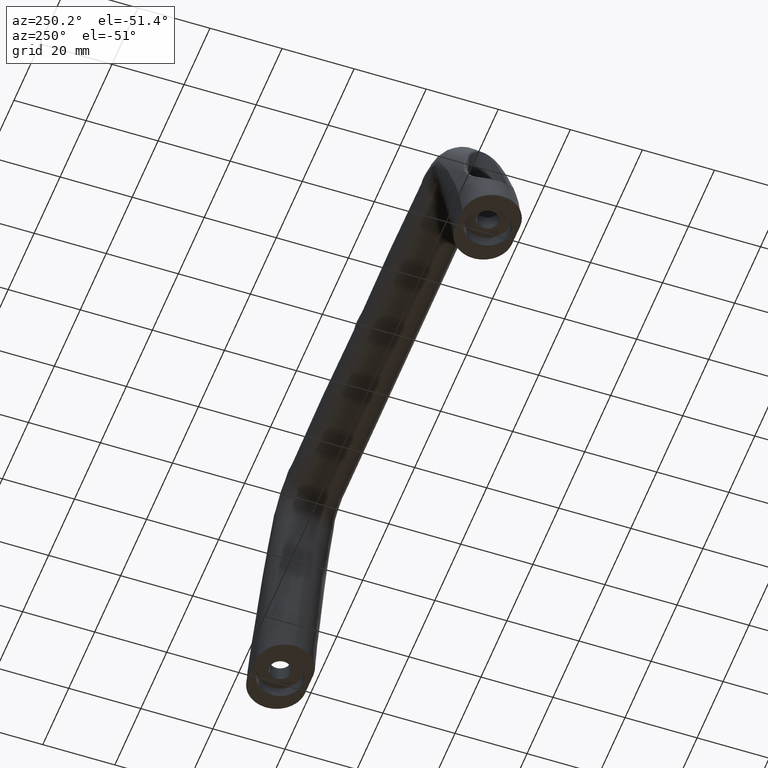
[diagram: clean part render]
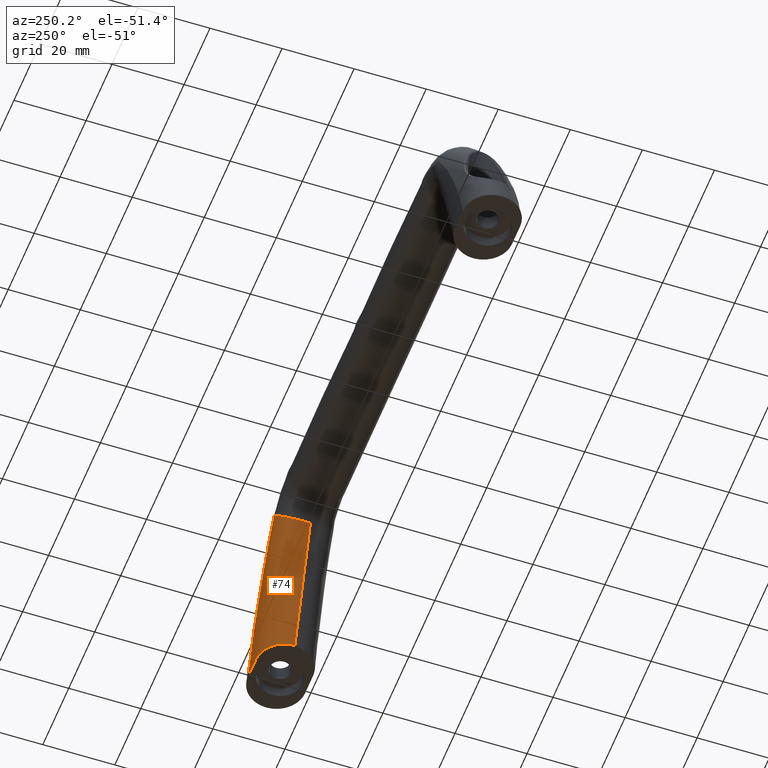
[diagram: same view with one face highlighted and labeled with its STEP entity id]
A machine part, auxiliary view. The second image highlights one B-rep face of the part: STEP entity #74.
In plain terms, the highlighted face is a freeform B-spline surface patch.
Its self-contained STEP definition (entity closure, byte-faithful):
#74=ADVANCED_FACE('',(#438),#437,.T.);
#437=( BOUNDED_SURFACE() B_SPLINE_SURFACE( 2,3,((#3720,#3721,#3722,#3723,#3724,#3725,#3726,#3727,#3728,#3729),(#3730,#3731,#3732,#3733,#3734,#3735,#3736,#3737,#3738,#3739),(#3740,#3741,#3742,#3743,#3744,#3745,#3746,#3747,#3748,#3749),(#3750,#3751,#3752,#3753,#3754,#3755,#3756,#3757,#3758,#3759),(#3760,#3761,#3762,#3763,#3764,#3765,#3766,#3767,#3768,#3769)), .UNSPECIFIED.,.F.,.F.,.F.) B_SPLINE_SURFACE_WITH_KNOTS((3,2,3),(4,2,2,2,4),(0.00000000000E+00,1.26555991594E+01,1.42983601190E+01),(-2.73114864058E-14,1.17126444058E+01,2.34252888115E+01,3.51379332173E+01,4.68505776231E+01), .UNSPECIFIED. ) GEOMETRIC_REPRESENTATION_ITEM() RATIONAL_B_SPLINE_SURFACE(((1.00000000000E+00,1.00000000000E+00,1.00000000000E+00,1.00000000000E+00,1.00000000000E+00,1.00000000000E+00,1.00000000000E+00,1.00000000000E+00,1.00000000000E+00,1.00000000000E+00),(7.07106781187E-01,7.07106781187E-01,7.07106781187E-01,7.07106781187E-01,7.07106781187E-01,7.07106781187E-01,7.07106781187E-01,7.07106781187E-01,7.07106781187E-01,7.07106781187E-01),(1.00000000000E+00,1.00000000000E+00,1.00000000000E+00,1.00000000000E+00,1.00000000000E+00,1.00000000000E+00,1.00000000000E+00,1.00000000000E+00,1.00000000000E+00,1.00000000000E+00),(9.86890175793E-01,9.86890175793E-01,9.87709539806E-01,9.90167631845E-01,9.91806359871E-01,9.95083815922E-01,9.96722543948E-01,9.99180635987E-01,1.00000000000E+00,1.00000000000E+00),(1.00000000000E+00,1.00000000000E+00,1.00000000000E+00,1.00000000000E+00,1.00000000000E+00,1.00000000000E+00,1.00000000000E+00,1.00000000000E+00,1.00000000000E+00,1.00000000000E+00))) REPRESENTATION_ITEM('') SURFACE() );
#438=FACE_OUTER_BOUND('',#3770,.T.);
#3720=CARTESIAN_POINT('',(-2.32899913541E+01,2.85000000150E+01,5.86999733827E+01));
#3721=CARTESIAN_POINT('',(-2.22824920745E+01,2.85000000150E+01,5.55999755995E+01));
#3722=CARTESIAN_POINT('',(-2.12749927950E+01,2.85000000150E+01,5.24999778164E+01));
#3723=CARTESIAN_POINT('',(-1.92599942359E+01,2.85000000150E+01,4.62999822501E+01));
#3724=CARTESIAN_POINT('',(-1.82524949564E+01,2.85000000150E+01,4.31999844670E+01));
#3725=CARTESIAN_POINT('',(-1.62374963974E+01,2.85000000150E+01,3.69999889007E+01));
#3726=CARTESIAN_POINT('',(-1.52299971179E+01,2.85000000150E+01,3.38999911175E+01));
#3727=CARTESIAN_POINT('',(-1.32149985590E+01,2.85000000150E+01,2.76999955512E+01));
#3728=CARTESIAN_POINT('',(-1.22074992795E+01,2.85000000150E+01,2.45999977681E+01));
#3729=CARTESIAN_POINT('',(-1.11999999999E+01,2.85000000150E+01,2.14999999850E+01));
#3730=CARTESIAN_POINT('',(-2.32899913541E+01,3.65566123028E+01,5.86999733827E+01));
#3731=CARTESIAN_POINT('',(-2.22824920745E+01,3.65566123028E+01,5.55999755995E+01));
#3732=CARTESIAN_POINT('',(-2.12749927950E+01,3.65499490349E+01,5.24999778164E+01));
#3733=CARTESIAN_POINT('',(-1.92599942359E+01,3.65299592309E+01,4.62999822501E+01));
#3734=CARTESIAN_POINT('',(-1.82524949564E+01,3.65166326949E+01,4.31999844670E+01));
#3735=CARTESIAN_POINT('',(-1.62374963974E+01,3.64899796229E+01,3.69999889007E+01));
#3736=CARTESIAN_POINT('',(-1.52299971179E+01,3.64766530870E+01,3.38999911175E+01));
#3737=CARTESIAN_POINT('',(-1.32149985590E+01,3.64566632830E+01,2.76999955512E+01));
#3738=CARTESIAN_POINT('',(-1.22074992795E+01,3.64500000150E+01,2.45999977681E+01));
#3739=CARTESIAN_POINT('',(-1.11999999999E+01,3.64500000150E+01,2.14999999850E+01));
#3740=CARTESIAN_POINT('',(-1.79222159583E+01,3.65566123028E+01,6.47079671291E+01));
#3741=CARTESIAN_POINT('',(-1.59331625505E+01,3.65566123028E+01,6.13731842310E+01));
#3742=CARTESIAN_POINT('',(-1.41736074125E+01,3.65499490349E+01,5.78350418513E+01));
#3743=CARTESIAN_POINT('',(-1.11860106982E+01,3.65299592309E+01,5.05921628121E+01));
#3744=CARTESIAN_POINT('',(-9.95441560421E+00,3.65166326949E+01,4.68920730364E+01));
#3745=CARTESIAN_POINT('',(-7.83648116805E+00,3.64899796229E+01,3.95254143793E+01));
#3746=CARTESIAN_POINT('',(-6.94259666984E+00,3.64766530870E+01,3.58623401949E+01));
#3747=CARTESIAN_POINT('',(-5.17132487878E+00,3.64566632830E+01,2.86357902746E+01));
#3748=CARTESIAN_POINT('',(-4.28695479229E+00,3.64500000150E+01,2.50725591624E+01));
#3749=CARTESIAN_POINT('',(-3.24999999993E+00,3.64500000150E+01,2.14999999850E+01));
#3750=CARTESIAN_POINT('',(-1.73701210390E+01,3.65566123028E+01,6.53259107982E+01));
#3751=CARTESIAN_POINT('',(-1.52825497598E+01,3.65566123028E+01,6.19673061865E+01));
#3752=CARTESIAN_POINT('',(-1.33740284117E+01,3.65498661212E+01,5.84603993675E+01));
#3753=CARTESIAN_POINT('',(-9.95292660388E+00,3.65296945658E+01,5.12700237748E+01));
#3754=CARTESIAN_POINT('',(-8.44038581323E+00,3.65163024101E+01,4.75945984716E+01));
#3755=CARTESIAN_POINT('',(-5.72755414775E+00,3.64896504260E+01,4.01877819169E+01));
#3756=CARTESIAN_POINT('',(-4.52273047366E+00,3.64763901624E+01,3.64580292106E+01));
#3757=CARTESIAN_POINT('',(-2.27152182565E+00,3.64565813212E+01,2.89959656932E+01));
#3758=CARTESIAN_POINT('',(-1.21980777474E+00,3.64500000150E+01,2.52579581122E+01));
#3759=CARTESIAN_POINT('',(-1.72289738416E-01,3.64500000150E+01,2.14999999850E+01));
#3760=CARTESIAN_POINT('',(-1.68467878146E+01,3.62926413948E+01,6.59116623447E+01));
#3761=CARTESIAN_POINT('',(-1.46654925782E+01,3.62926413948E+01,6.25298085047E+01));
#3762=CARTESIAN_POINT('',(-1.26047943234E+01,3.63024763086E+01,5.90509917418E+01));
#3763=CARTESIAN_POINT('',(-8.74389165421E+00,3.63319810499E+01,5.19238773608E+01));
#3764=CARTESIAN_POINT('',(-6.94358544698E+00,3.63516508774E+01,4.82751480269E+01));
#3765=CARTESIAN_POINT('',(-3.62443640942E+00,3.63909905324E+01,4.08347918637E+01));
#3766=CARTESIAN_POINT('',(-2.10559984680E+00,3.64106603600E+01,3.70428377879E+01));
#3767=CARTESIAN_POINT('',(6.30410565549E-01,3.64401651012E+01,2.93466784223E+01));
#3768=CARTESIAN_POINT('',(1.84748475563E+00,3.64500000150E+01,2.54425119447E+01));
#3769=CARTESIAN_POINT('',(2.90542052310E+00,3.64500000150E+01,2.14999999850E+01));
#3770=EDGE_LOOP('',(#4235,#4236,#4237,#4238,#4239));
#4235=ORIENTED_EDGE('',*,*,#4406,.F.);
#4236=ORIENTED_EDGE('',*,*,#4405,.T.);
#4237=ORIENTED_EDGE('',*,*,#4390,.F.);
#4238=ORIENTED_EDGE('',*,*,#4396,.F.);
#4239=ORIENTED_EDGE('',*,*,#4401,.F.);
#4390=EDGE_CURVE('',#4923,#4924,#4925,.T.);
#4396=EDGE_CURVE('',#4957,#4923,#4964,.T.);
#4401=EDGE_CURVE('',#4989,#4957,#4996,.T.);
#4405=EDGE_CURVE('',#4451,#4924,#5021,.T.);
#4406=EDGE_CURVE('',#4451,#4989,#5027,.T.);
#4451=VERTEX_POINT('',#5272);
#4923=VERTEX_POINT('',#6342);
#4924=VERTEX_POINT('',#6343);
#4925=LINE('',#6344,#6345);
#4957=VERTEX_POINT('',#6397);
#4964=CIRCLE('',#6420,8.05661228784E+00);
#4989=VERTEX_POINT('',#6455);
#4996=CIRCLE('',#6468,5.06705175328E+00);
#5021=(BOUNDED_CURVE() B_SPLINE_CURVE(3,(#6524,#6525,#6526,#6527,#6528,#6529,#6530,#6531,#6532,#6533,#6534,#6535,#6536,#6537,#6538,#6539,#6540,#6541,#6542,#6543,#6544,#6545,#6546,#6547,#6548,#6549,#6550,#6551,#6552,#6553,#6554,#6555,#6556,#6557),.UNSPECIFIED.,.F.,.F.) B_SPLINE_CURVE_WITH_KNOTS((4,1,2,2,2,2,2,2,2,2,2,2,2,2,2,1,2,4),(-1.86531113827E+01,-1.39898335370E+01,-1.28240140756E+01,-1.22411043449E+01,-1.16581946142E+01,-1.04923751528E+01,-9.90946542204E+00,-9.32655569133E+00,-8.16073622988E+00,-6.99491676854E+00,-5.82909730710E+00,-4.66327784566E+00,-2.33163892278E+00,-1.16581946144E+00,-5.82909730720E-01,-2.91454865309E-01,-1.45727432705E-01,0.00000000000E+00),.UNSPECIFIED.) CURVE() GEOMETRIC_REPRESENTATION_ITEM() RATIONAL_B_SPLINE_CURVE((1.00000000000E+00,1.00000000000E+00,1.00000000000E+00,1.00000000000E+00,1.00000000000E+00,1.00000000000E+00,1.00000000000E+00,1.00000000000E+00,1.00000000000E+00,1.00000000000E+00,1.00000000000E+00,1.00000000000E+00,1.00000000000E+00,1.00000000000E+00,1.00000000000E+00,1.00000000000E+00,1.00000000000E+00,1.00000000000E+00,1.00000000000E+00,1.00000000000E+00,1.00000000000E+00,1.00000000000E+00,1.00000000000E+00,1.00000000000E+00,1.00000000000E+00,1.00000000000E+00,1.00000000000E+00,1.00000000000E+00,1.00000000000E+00,1.00000000000E+00,1.00000000000E+00,1.00000000000E+00,1.00000000000E+00,1.00000000000E+00)) REPRESENTATION_ITEM('') );
#5027=(BOUNDED_CURVE() B_SPLINE_CURVE(3,(#6558,#6559,#6560,#6561,#6562,#6563,#6564,#6565,#6566,#6567,#6568,#6569,#6570),.UNSPECIFIED.,.F.,.F.) B_SPLINE_CURVE_WITH_KNOTS((4,3,3,3,4),(0.00000000000E+00,1.20482180650E+01,2.42907375283E+01,3.64859717455E+01,4.86065040064E+01),.UNSPECIFIED.) CURVE() GEOMETRIC_REPRESENTATION_ITEM() RATIONAL_B_SPLINE_CURVE((1.00000000000E+00,1.00000000000E+00,1.00000000000E+00,1.00000000000E+00,1.00000000000E+00,1.00000000000E+00,1.00000000000E+00,1.00000000000E+00,1.00000000000E+00,1.00000000000E+00,1.00000000000E+00,1.00000000000E+00,1.00000000000E+00)) REPRESENTATION_ITEM('') );
#5272=CARTESIAN_POINT('',(2.85160230910E+00,3.64499915980E+01,2.17000175471E+01));
#6342=CARTESIAN_POINT('',(-2.32899913541E+01,2.85000000150E+01,5.86999733827E+01));
#6343=CARTESIAN_POINT('',(-1.12449094052E+01,2.85000000150E+01,2.16381827705E+01));
#6344=CARTESIAN_POINT('',(-2.32899913541E+01,2.85000000150E+01,5.86999733827E+01));
#6345=VECTOR('',#6346,3.89699925909E+01);
#6346=DIRECTION('',(3.09086072336E-01,0.00000000000E+00,-9.51034068731E-01));
#6397=CARTESIAN_POINT('',(-1.79222159583E+01,3.65566123028E+01,6.47079671291E+01));
#6417=CARTESIAN_POINT('',(-1.79222159584E+01,2.85000000150E+01,6.47079671292E+01));
#6418=DIRECTION('',(-7.45722089115E-01,1.39614191261E-11,6.66257131899E-01));
#6419=DIRECTION('',(-1.04090656708E-11,-1.00000000000E+00,9.30443912956E-12));
#6420=AXIS2_PLACEMENT_3D('',#6417,#6418,#6419);
#6455=CARTESIAN_POINT('',(-1.68467878146E+01,3.62926413948E+01,6.59116623447E+01));
#6465=CARTESIAN_POINT('',(-1.79222159585E+01,3.14895605496E+01,6.47079671293E+01));
#6466=DIRECTION('',(-7.45722089115E-01,5.28452281934E-11,6.66257131899E-01));
#6467=DIRECTION('',(-2.12239423677E-01,-9.47904438152E-01,-2.37553369096E-01));
#6468=AXIS2_PLACEMENT_3D('',#6465,#6466,#6467);
#6524=CARTESIAN_POINT('',(2.85160230910E+00,3.64499915980E+01,2.17000175471E+01));
#6525=CARTESIAN_POINT('',(1.31562645853E+00,3.64499982111E+01,2.17000042587E+01));
#6526=CARTESIAN_POINT('',(-6.04343639118E-01,3.64500044331E+01,2.16999917199E+01));
#6527=CARTESIAN_POINT('',(-2.52431340435E+00,3.64500065454E+01,2.16999873630E+01));
#6528=CARTESIAN_POINT('',(-3.10030433578E+00,3.64500068956E+01,2.16999866201E+01));
#6529=CARTESIAN_POINT('',(-3.29237989954E+00,3.64523136552E+01,2.17001028520E+01));
#6530=CARTESIAN_POINT('',(-3.67607854688E+00,3.64437779165E+01,2.16973010127E+01));
#6531=CARTESIAN_POINT('',(-3.86769159724E+00,3.64325560407E+01,2.16958908764E+01));
#6532=CARTESIAN_POINT('',(-4.44181803695E+00,3.63779137299E+01,2.16916350262E+01));
#6533=CARTESIAN_POINT('',(-4.82362302458E+00,3.63136434678E+01,2.16887637709E+01));
#6534=CARTESIAN_POINT('',(-5.39482438522E+00,3.61729088404E+01,2.16844164499E+01));
#6535=CARTESIAN_POINT('',(-5.58498029330E+00,3.61184727707E+01,2.16829604689E+01));
#6536=CARTESIAN_POINT('',(-5.95718437955E+00,3.59968030230E+01,2.16800958551E+01));
#6537=CARTESIAN_POINT('',(-6.14020721780E+00,3.59293543828E+01,2.16786798333E+01));
#6538=CARTESIAN_POINT('',(-6.68020779759E+00,3.57075315461E+01,2.16744838295E+01));
#6539=CARTESIAN_POINT('',(-7.02816611906E+00,3.55337846377E+01,2.16717556587E+01));
#6540=CARTESIAN_POINT('',(-7.69971281840E+00,3.51339465318E+01,2.16664607295E+01));
#6541=CARTESIAN_POINT('',(-8.02463979214E+00,3.49062210805E+01,2.16638831935E+01));
#6542=CARTESIAN_POINT('',(-8.62899967290E+00,3.44121380199E+01,2.16590745938E+01));
#6543=CARTESIAN_POINT('',(-8.91109535140E+00,3.41445312625E+01,2.16568226083E+01));
#6544=CARTESIAN_POINT('',(-9.43540967948E+00,3.35684856720E+01,2.16526329298E+01));
#6545=CARTESIAN_POINT('',(-9.67931861709E+00,3.32573774706E+01,2.16506816608E+01));
#6546=CARTESIAN_POINT('',(-1.03342876315E+01,3.22801255714E+01,2.16454435664E+01));
#6547=CARTESIAN_POINT('',(-1.06683083700E+01,3.15777870831E+01,2.16427758750E+01));
#6548=CARTESIAN_POINT('',(-1.10133146370E+01,3.04469897256E+01,2.16400257575E+01));
#6549=CARTESIAN_POINT('',(-1.11002771773E+01,3.00609860546E+01,2.16393334828E+01));
#6550=CARTESIAN_POINT('',(-1.11869025050E+01,2.94793314105E+01,2.16386441524E+01));
#6551=CARTESIAN_POINT('',(-1.12085931495E+01,2.92846222909E+01,2.16384716147E+01));
#6552=CARTESIAN_POINT('',(-1.12303456201E+01,2.89913214740E+01,2.16382985988E+01));
#6553=CARTESIAN_POINT('',(-1.12385232327E+01,2.88443614658E+01,2.16382335615E+01));
#6554=CARTESIAN_POINT('',(-1.12426264374E+01,2.86969340209E+01,2.16382009286E+01));
#6555=CARTESIAN_POINT('',(-1.12444517543E+01,2.85985446403E+01,2.16381864114E+01));
#6556=CARTESIAN_POINT('',(-1.12449093884E+01,2.85479714952E+01,2.16381827195E+01));
#6557=CARTESIAN_POINT('',(-1.12449094052E+01,2.85000000150E+01,2.16381827705E+01));
#6558=CARTESIAN_POINT('',(2.85160230910E+00,3.64499915980E+01,2.17000175471E+01));
#6559=CARTESIAN_POINT('',(1.80627047026E+00,3.64496659134E+01,2.55745657893E+01));
#6560=CARTESIAN_POINT('',(6.07272169906E-01,3.64399155801E+01,2.94117647171E+01));
#6561=CARTESIAN_POINT('',(-7.37594640632E-01,3.64254127306E+01,3.31947581051E+01));
#6562=CARTESIAN_POINT('',(-2.10559984681E+00,3.64106603600E+01,3.70428377879E+01));
#6563=CARTESIAN_POINT('',(-3.62443640943E+00,3.63909905324E+01,4.08347918637E+01));
#6564=CARTESIAN_POINT('',(-5.28401092820E+00,3.63713207049E+01,4.45549699453E+01));
#6565=CARTESIAN_POINT('',(-6.94358544698E+00,3.63516508774E+01,4.82751480269E+01));
#6566=CARTESIAN_POINT('',(-8.74389165421E+00,3.63319810499E+01,5.19238773608E+01));
#6567=CARTESIAN_POINT('',(-1.06743429888E+01,3.63172286792E+01,5.54874345513E+01));
#6568=CARTESIAN_POINT('',(-1.26047943234E+01,3.63024763086E+01,5.90509917418E+01));
#6569=CARTESIAN_POINT('',(-1.46654925782E+01,3.62926413948E+01,6.25298085047E+01));
#6570=CARTESIAN_POINT('',(-1.68467878146E+01,3.62926413948E+01,6.59116623447E+01));